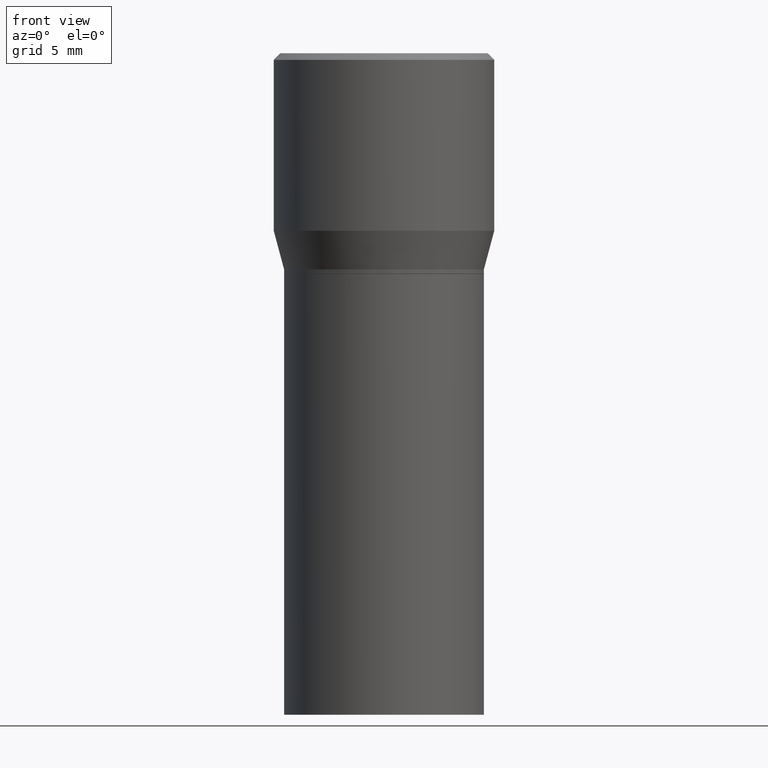
[diagram: clean part render]
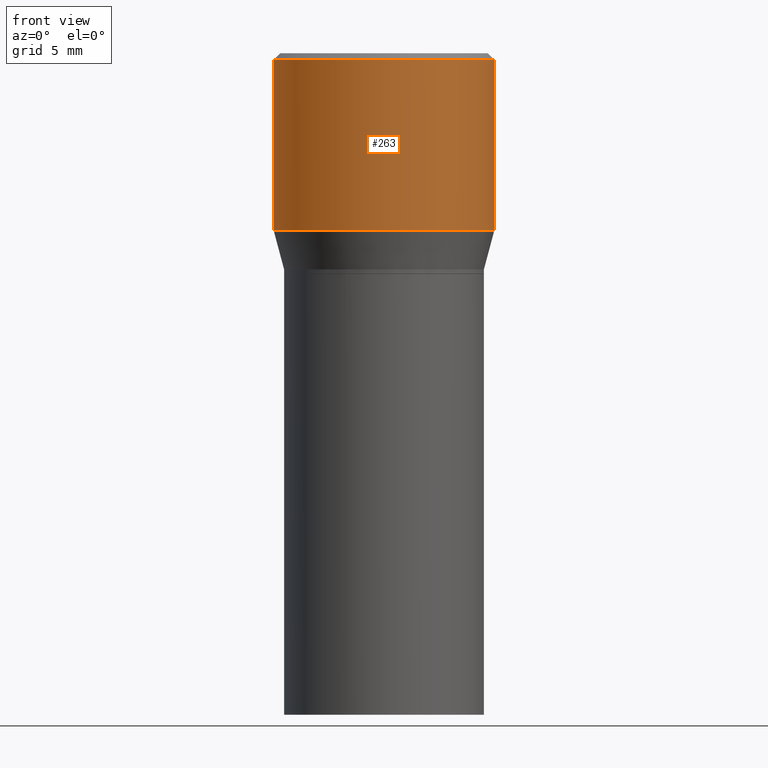
[diagram: same view with one face highlighted and labeled with its STEP entity id]
A machine part, front view. The second image highlights one B-rep face of the part: STEP entity #263.
In plain terms, the highlighted cylindrical surface (partial cylindrical patch) has radius 6.35 mm, axis along (-0, 0, 1).
Its self-contained STEP definition (entity closure, byte-faithful):
#2 = AXIS2_PLACEMENT_3D ( 'NONE', #61, #448, #134 ) ;
#4 = EDGE_LOOP ( 'NONE', ( #408, #412, #331, #193 ) ) ;
#34 = DIRECTION ( 'NONE',  ( 1.000000000000000000, -6.982962677686265922E-15, 0.000000000000000000 ) ) ;
#58 = VECTOR ( 'NONE', #418, 39.37007874015748143 ) ;
#61 = CARTESIAN_POINT ( 'NONE',  ( 3.668203209277705088E-31, -5.237222008264718399E-17, -0.01499999999999999944 ) ) ;
#70 = VERTEX_POINT ( 'NONE', #352 ) ;
#81 = VERTEX_POINT ( 'NONE', #200 ) ;
#94 = EDGE_CURVE ( 'NONE', #185, #70, #205, .T. ) ;
#100 = AXIS2_PLACEMENT_3D ( 'NONE', #113, #401, #34 ) ;
#102 = LINE ( 'NONE', #274, #58 ) ;
#103 = CARTESIAN_POINT ( 'NONE',  ( -0.2500000000000000000, 1.047539074263934229E-15, -0.01499999999999999944 ) ) ;
#113 = CARTESIAN_POINT ( 'NONE',  ( 9.842606206466859638E-30, -1.405263310189985589E-15, -0.4024834085625100810 ) ) ;
#114 = EDGE_CURVE ( 'NONE', #81, #185, #102, .T. ) ;
#134 = DIRECTION ( 'NONE',  ( 1.000000000000000000, -6.982962677686266711E-15, 0.000000000000000000 ) ) ;
#154 = EDGE_CURVE ( 'NONE', #81, #431, #348, .T. ) ;
#159 = CARTESIAN_POINT ( 'NONE',  ( 0.000000000000000000, 0.000000000000000000, 0.000000000000000000 ) ) ;
#185 = VERTEX_POINT ( 'NONE', #103 ) ;
#186 = CYLINDRICAL_SURFACE ( 'NONE', #405, 0.2500000000000000000 ) ;
#193 = ORIENTED_EDGE ( 'NONE', *, *, #94, .F. ) ;
#195 = VECTOR ( 'NONE', #466, 39.37007874015748143 ) ;
#200 = CARTESIAN_POINT ( 'NONE',  ( -0.2500000000000000000, 3.710935292102651716E-16, -0.4024834085625100810 ) ) ;
#205 = CIRCLE ( 'NONE', #2, 0.2500000000000000000 ) ;
#214 = FACE_OUTER_BOUND ( 'NONE', #4, .T. ) ;
#222 = LINE ( 'NONE', #396, #195 ) ;
#263 = ADVANCED_FACE ( 'NONE', ( #214 ), #186, .T. ) ;
#265 = DIRECTION ( 'NONE',  ( -2.445468806185136597E-29, 3.491481338843145583E-15, 1.000000000000000000 ) ) ;
#274 = CARTESIAN_POINT ( 'NONE',  ( -0.2500000000000000000, 1.776356839400250465E-15, -1.229733772563726445E-29 ) ) ;
#323 = CARTESIAN_POINT ( 'NONE',  ( 0.2500000000000000000, -3.151003979611552069E-15, -0.4024834085625100810 ) ) ;
#331 = ORIENTED_EDGE ( 'NONE', *, *, #388, .T. ) ;
#348 = CIRCLE ( 'NONE', #100, 0.2500000000000000000 ) ;
#352 = CARTESIAN_POINT ( 'NONE',  ( 0.2500000000000000000, -1.798112889504214151E-15, -0.01499999999999999944 ) ) ;
#388 = EDGE_CURVE ( 'NONE', #431, #70, #222, .T. ) ;
#396 = CARTESIAN_POINT ( 'NONE',  ( 0.2500000000000000000, -1.745740669421566678E-15, 1.219044193948983948E-29 ) ) ;
#401 = DIRECTION ( 'NONE',  ( -2.445468806185136597E-29, 3.491481338843145583E-15, 1.000000000000000000 ) ) ;
#405 = AXIS2_PLACEMENT_3D ( 'NONE', #159, #265, #414 ) ;
#408 = ORIENTED_EDGE ( 'NONE', *, *, #114, .F. ) ;
#412 = ORIENTED_EDGE ( 'NONE', *, *, #154, .T. ) ;
#414 = DIRECTION ( 'NONE',  ( 1.000000000000000000, -6.982962677686266711E-15, 4.876176775795935793E-29 ) ) ;
#418 = DIRECTION ( 'NONE',  ( -2.445468806185136877E-29, 3.491481338843145188E-15, 1.000000000000000000 ) ) ;
#431 = VERTEX_POINT ( 'NONE', #323 ) ;
#448 = DIRECTION ( 'NONE',  ( -2.445468806185136597E-29, 3.491481338843145583E-15, 1.000000000000000000 ) ) ;
#466 = DIRECTION ( 'NONE',  ( -2.445468806185136877E-29, 3.491481338843145188E-15, 1.000000000000000000 ) ) ;